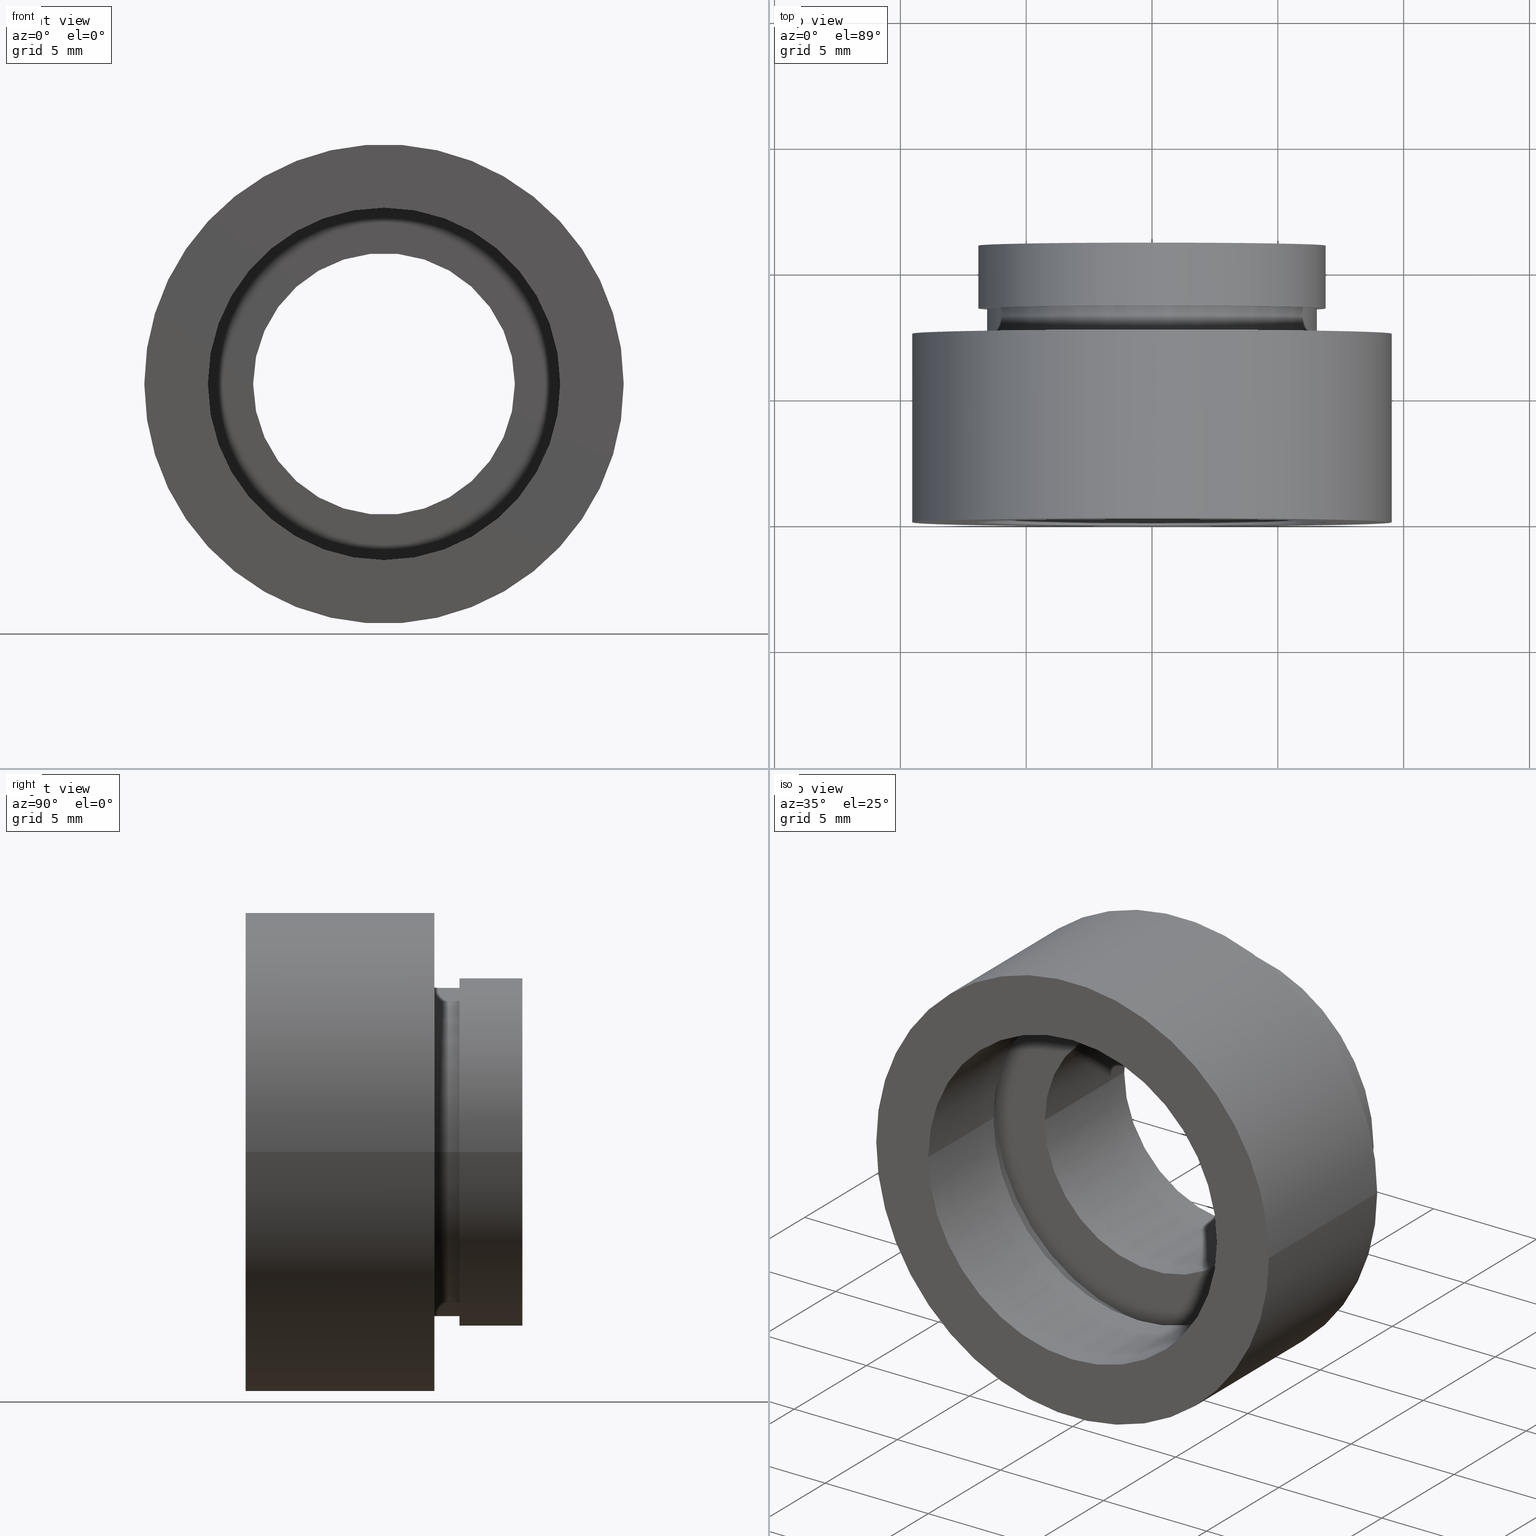
[diagram: canonical four-view strip — front | top / right | iso, engineering-drawing reading convention]
A machine part, canonical four-view strip (front | top / right | iso — engineering-drawing reading convention). The complete STEP part file that produces these views, byte-faithful:
ISO-10303-21;
HEADER;
FILE_DESCRIPTION (( 'STEP AP214' ),
    '1' );
FILE_NAME ('504133.STEP',
    '2019-10-10T02:31:04',
    ( '' ),
    ( '' ),
    'SwSTEP 2.0',
    'SolidWorks 2016',
    '' );
FILE_SCHEMA (( 'AUTOMOTIVE_DESIGN' ));
ENDSEC;

DATA;
#1 = DIRECTION ( 'NONE',  ( -1.000000000000000000, -9.106159978880877400E-017, 0.0000000000000000000 ) ) ;
#2 = EDGE_CURVE ( 'NONE', #444, #619, #563, .T. ) ;
#3 = CARTESIAN_POINT ( 'NONE',  ( 1.149455719078122700E-015, 7.499999999999998200, 0.0000000000000000000 ) ) ;
#4 = VERTEX_POINT ( 'NONE', #410 ) ;
#5 = EDGE_LOOP ( 'NONE', ( #231, #230 ) ) ;
#6 = CIRCLE ( 'NONE', #387, 5.200000000000001100 ) ;
#7 = VECTOR ( 'NONE', #339, 1000.000000000000000 ) ;
#8 = AXIS2_PLACEMENT_3D ( 'NONE', #320, #469, #323 ) ;
#9 = DIRECTION ( 'NONE',  ( -1.000000000000000000, -1.141265444721583800E-016, 0.0000000000000000000 ) ) ;
#10 = CARTESIAN_POINT ( 'NONE',  ( -7.599999999999997900, 4.499999999999996400, 0.0000000000000000000 ) ) ;
#11 = DIRECTION ( 'NONE',  ( -1.224646799147351000E-016, 1.000000000000000000, -0.0000000000000000000 ) ) ;
#12 = PRESENTATION_STYLE_ASSIGNMENT (( #125 ) ) ;
#13 = EDGE_CURVE ( 'NONE', #226, #619, #561, .T. ) ;
#14 = CARTESIAN_POINT ( 'NONE',  ( 0.0000000000000000000, 16.88601823708207700, 0.0000000000000000000 ) ) ;
#15 = ORIENTED_EDGE ( 'NONE', *, *, #514, .T. ) ;
#16 = EDGE_LOOP ( 'NONE', ( #217, #333, #609, #78 ) ) ;
#17 = DIRECTION ( 'NONE',  ( -1.224646799147351000E-016, 1.000000000000000000, -0.0000000000000000000 ) ) ;
#18 = CYLINDRICAL_SURFACE ( 'NONE', #156, 7.000000000000000000 ) ;
#19 = FACE_OUTER_BOUND ( 'NONE', #453, .T. ) ;
#20 = CARTESIAN_POINT ( 'NONE',  ( 2.067940818438636100E-015, 0.0000000000000000000, 0.0000000000000000000 ) ) ;
#21 = ORIENTED_EDGE ( 'NONE', *, *, #514, .F. ) ;
#22 = EDGE_CURVE ( 'NONE', #170, #28, #586, .T. ) ;
#23 = AXIS2_PLACEMENT_3D ( 'NONE', #459, #379, #602 ) ;
#24 = VECTOR ( 'NONE', #77, 1000.000000000000000 ) ;
#25 = PRESENTATION_STYLE_ASSIGNMENT (( #288 ) ) ;
#26 = DIRECTION ( 'NONE',  ( -1.000000000000000000, 0.0000000000000000000, 0.0000000000000000000 ) ) ;
#27 = DIRECTION ( 'NONE',  ( -1.000000000000000000, 0.0000000000000000000, 0.0000000000000000000 ) ) ;
#28 = VERTEX_POINT ( 'NONE', #460 ) ;
#29 = CARTESIAN_POINT ( 'NONE',  ( 7.208293393765501500E-016, 10.99999999999999600, 0.0000000000000000000 ) ) ;
#30 = ORIENTED_EDGE ( 'NONE', *, *, #220, .T. ) ;
#31 = AXIS2_PLACEMENT_3D ( 'NONE', #556, #270, #321 ) ;
#32 = CARTESIAN_POINT ( 'NONE',  ( 0.0000000000000000000, 16.88601823708207700, 0.0000000000000000000 ) ) ;
#33 = CIRCLE ( 'NONE', #182, 6.549999999999998900 ) ;
#34 = VECTOR ( 'NONE', #388, 1000.000000000000000 ) ;
#35 = CARTESIAN_POINT ( 'NONE',  ( 6.900000000000001200, 8.500000000000000000, 0.0000000000000000000 ) ) ;
#36 =( NAMED_UNIT ( * ) PLANE_ANGLE_UNIT ( ) SI_UNIT ( $, .RADIAN. ) );
#37 = AXIS2_PLACEMENT_3D ( 'NONE', #63, #394, #497 ) ;
#38 =( NAMED_UNIT ( * ) SI_UNIT ( $, .STERADIAN. ) SOLID_ANGLE_UNIT ( ) );
#39 = DIRECTION ( 'NONE',  ( -1.000000000000000000, -1.224646799147351000E-016, 0.0000000000000000000 ) ) ;
#40 = ORIENTED_EDGE ( 'NONE', *, *, #79, .F. ) ;
#41 = FILL_AREA_STYLE ('',( #192 ) ) ;
#42 = FACE_OUTER_BOUND ( 'NONE', #476, .T. ) ;
#43 = CARTESIAN_POINT ( 'NONE',  ( -6.549999999999998000, 8.500000000000000000, 0.0000000000000000000 ) ) ;
#44 = EDGE_CURVE ( 'NONE', #444, #325, #69, .T. ) ;
#45 =( NAMED_UNIT ( * ) SI_UNIT ( $, .STERADIAN. ) SOLID_ANGLE_UNIT ( ) );
#46 = AXIS2_PLACEMENT_3D ( 'NONE', #183, #184, #371 ) ;
#47 = SURFACE_STYLE_FILL_AREA ( #337 ) ;
#48 = ORIENTED_EDGE ( 'NONE', *, *, #582, .F. ) ;
#49 = ORIENTED_EDGE ( 'NONE', *, *, #404, .F. ) ;
#50 = CARTESIAN_POINT ( 'NONE',  ( 6.900000000000001200, 16.88601823708207700, 8.450062914116738600E-016 ) ) ;
#51 = MECHANICAL_DESIGN_GEOMETRIC_PRESENTATION_REPRESENTATION (  '', ( #204 ), #447 ) ;
#52 = PLANE ( 'NONE',  #328 ) ;
#53 = VECTOR ( 'NONE', #583, 1000.000000000000000 ) ;
#54 = ADVANCED_FACE ( 'NONE', ( #93 ), #436, .F. ) ;
#55 =( LENGTH_UNIT ( ) NAMED_UNIT ( * ) SI_UNIT ( .MILLI., .METRE. ) );
#56 = ADVANCED_FACE ( 'NONE', ( #305 ), #346, .T. ) ;
#57 = DIRECTION ( 'NONE',  ( -1.224646799147351000E-016, 1.000000000000000000, -0.0000000000000000000 ) ) ;
#58 = ORIENTED_EDGE ( 'NONE', *, *, #207, .T. ) ;
#59 = ADVANCED_FACE ( 'NONE', ( #19, #461 ), #615, .F. ) ;
#60 = EDGE_CURVE ( 'NONE', #538, #94, #525, .T. ) ;
#61 = AXIS2_PLACEMENT_3D ( 'NONE', #118, #222, #27 ) ;
#62 = DIRECTION ( 'NONE',  ( -1.000000000000000000, 0.0000000000000000000, 0.0000000000000000000 ) ) ;
#63 = CARTESIAN_POINT ( 'NONE',  ( 0.0000000000000000000, 16.88601823708207700, 0.0000000000000000000 ) ) ;
#64 = DIRECTION ( 'NONE',  ( -1.224646799147351000E-016, 1.000000000000000000, -0.0000000000000000000 ) ) ;
#65 = ORIENTED_EDGE ( 'NONE', *, *, #603, .T. ) ;
#66 = CARTESIAN_POINT ( 'NONE',  ( 5.200000000000001100, 5.500000000000000900, 6.368163355566236400E-016 ) ) ;
#67 = DIRECTION ( 'NONE',  ( -1.224646799147351000E-016, 1.000000000000000000, -0.0000000000000000000 ) ) ;
#68 = CARTESIAN_POINT ( 'NONE',  ( 7.208293393765498600E-016, 11.00000000000000000, 0.0000000000000000000 ) ) ;
#69 = CIRCLE ( 'NONE', #363, 6.549999999999999800 ) ;
#70 = ORIENTED_EDGE ( 'NONE', *, *, #440, .F. ) ;
#71 = AXIS2_PLACEMENT_3D ( 'NONE', #553, #501, #502 ) ;
#72 =( NAMED_UNIT ( * ) SI_UNIT ( $, .STERADIAN. ) SOLID_ANGLE_UNIT ( ) );
#73 = LINE ( 'NONE', #251, #34 ) ;
#74 = DIRECTION ( 'NONE',  ( -1.000000000000000000, 0.0000000000000000000, 0.0000000000000000000 ) ) ;
#75 = PRESENTATION_LAYER_ASSIGNMENT (  '', '', ( #204 ) ) ;
#76 = CARTESIAN_POINT ( 'NONE',  ( -5.200000000000000200, 16.88601823708207700, 0.0000000000000000000 ) ) ;
#77 = DIRECTION ( 'NONE',  ( -1.224646799147351000E-016, 1.000000000000000000, -0.0000000000000000000 ) ) ;
#78 = ORIENTED_EDGE ( 'NONE', *, *, #590, .F. ) ;
#79 = EDGE_CURVE ( 'NONE', #443, #265, #607, .T. ) ;
#80 = EDGE_LOOP ( 'NONE', ( #65, #219, #186, #285 ) ) ;
#81 = PRODUCT_DEFINITION ( 'δ֪', '', #595, #445 ) ;
#82 = CIRCLE ( 'NONE', #191, 6.900000000000001200 ) ;
#83 = PRESENTATION_STYLE_ASSIGNMENT (( #555 ) ) ;
#84 = DIRECTION ( 'NONE',  ( -1.224646799147351000E-016, 1.000000000000000000, -0.0000000000000000000 ) ) ;
#85 = FILL_AREA_STYLE ('',( #474 ) ) ;
#86 = DIRECTION ( 'NONE',  ( -1.224646799147351000E-016, 1.000000000000000000, 0.0000000000000000000 ) ) ;
#87 = ORIENTED_EDGE ( 'NONE', *, *, #614, .T. ) ;
#88 = CARTESIAN_POINT ( 'NONE',  ( 1.149455719078122500E-015, 7.500000000000000000, 0.0000000000000000000 ) ) ;
#89 = EDGE_CURVE ( 'NONE', #326, #135, #225, .T. ) ;
#90 = CARTESIAN_POINT ( 'NONE',  ( 5.200000000000001100, 5.500000000000000000, 0.0000000000000000000 ) ) ;
#91 = PRESENTATION_LAYER_ASSIGNMENT (  '', '', ( #221 ) ) ;
#92 = ADVANCED_FACE ( 'NONE', ( #160, #193 ), #196, .F. ) ;
#93 = FACE_OUTER_BOUND ( 'NONE', #114, .T. ) ;
#94 = VERTEX_POINT ( 'NONE', #520 ) ;
#95 = ORIENTED_EDGE ( 'NONE', *, *, #60, .F. ) ;
#96 = CIRCLE ( 'NONE', #142, 7.000000000000000000 ) ;
#97 = AXIS2_PLACEMENT_3D ( 'NONE', #3, #151, #1 ) ;
#98 = CARTESIAN_POINT ( 'NONE',  ( 6.900000000000001200, 8.500000000000000000, 8.450062914116738600E-016 ) ) ;
#99 = VECTOR ( 'NONE', #17, 1000.000000000000000 ) ;
#100 = CYLINDRICAL_SURFACE ( 'NONE', #167, 7.000000000000000000 ) ;
#101 = SURFACE_SIDE_STYLE ('',( #571 ) ) ;
#102 = ORIENTED_EDGE ( 'NONE', *, *, #355, .T. ) ;
#103 = DIRECTION ( 'NONE',  ( 1.000000000000000000, 1.224646799147351000E-016, 0.0000000000000000000 ) ) ;
#104 = ADVANCED_FACE ( 'NONE', ( #398 ), #100, .F. ) ;
#105 = LINE ( 'NONE', #213, #431 ) ;
#106 = CARTESIAN_POINT ( 'NONE',  ( -6.900000000000001200, 16.88601823708207700, 0.0000000000000000000 ) ) ;
#107 = LINE ( 'NONE', #246, #302 ) ;
#108 = MANIFOLD_SOLID_BREP ( '��ת1', #548 ) ;
#109 = SHAPE_DEFINITION_REPRESENTATION ( #252, #375 ) ;
#110 = ADVANCED_FACE ( 'NONE', ( #393 ), #407, .F. ) ;
#111 = DIRECTION ( 'NONE',  ( -1.000000000000000000, 0.0000000000000000000, 0.0000000000000000000 ) ) ;
#112 = AXIS2_PLACEMENT_3D ( 'NONE', #541, #11, #353 ) ;
#113 = DIRECTION ( 'NONE',  ( -1.224646799147351000E-016, 1.000000000000000000, -0.0000000000000000000 ) ) ;
#114 = EDGE_LOOP ( 'NONE', ( #95, #547, #601, #372 ) ) ;
#115 = CARTESIAN_POINT ( 'NONE',  ( -7.599999999999999600, 16.88601823708207700, 0.0000000000000000000 ) ) ;
#116 = EDGE_CURVE ( 'NONE', #487, #135, #491, .T. ) ;
#117 = AXIS2_PLACEMENT_3D ( 'NONE', #403, #439, #492 ) ;
#118 = CARTESIAN_POINT ( 'NONE',  ( 0.0000000000000000000, 16.88601823708207700, 0.0000000000000000000 ) ) ;
#119 = CARTESIAN_POINT ( 'NONE',  ( 0.0000000000000000000, 16.88601823708207700, 0.0000000000000000000 ) ) ;
#120 =( GEOMETRIC_REPRESENTATION_CONTEXT ( 3 ) GLOBAL_UNCERTAINTY_ASSIGNED_CONTEXT ( ( #529 ) ) GLOBAL_UNIT_ASSIGNED_CONTEXT ( ( #55, #580, #483 ) ) REPRESENTATION_CONTEXT ( 'NONE', 'WORKASPACE' ) );
#121 = ORIENTED_EDGE ( 'NONE', *, *, #440, .T. ) ;
#122 = DIRECTION ( 'NONE',  ( -1.000000000000000000, 0.0000000000000000000, 0.0000000000000000000 ) ) ;
#123 = CIRCLE ( 'NONE', #97, 9.525000000000000400 ) ;
#124 = COLOUR_RGB ( '',1.000000000000000000, 1.000000000000000000, 1.000000000000000000 ) ;
#125 = SURFACE_STYLE_USAGE ( .BOTH. , #606 ) ;
#126 = DIRECTION ( 'NONE',  ( -1.224646799147351000E-016, 1.000000000000000000, -0.0000000000000000000 ) ) ;
#127 = EDGE_LOOP ( 'NONE', ( #574, #249 ) ) ;
#128 =( GEOMETRIC_REPRESENTATION_CONTEXT ( 3 ) GLOBAL_UNCERTAINTY_ASSIGNED_CONTEXT ( ( #284 ) ) GLOBAL_UNIT_ASSIGNED_CONTEXT ( ( #435, #350, #297 ) ) REPRESENTATION_CONTEXT ( 'NONE', 'WORKASPACE' ) );
#129 = ORIENTED_EDGE ( 'NONE', *, *, #467, .T. ) ;
#130 = CARTESIAN_POINT ( 'NONE',  ( 1.026991039163387500E-015, 8.500000000000000000, 0.0000000000000000000 ) ) ;
#131 = FACE_OUTER_BOUND ( 'NONE', #554, .T. ) ;
#132 = PLANE ( 'NONE',  #528 ) ;
#133 = CARTESIAN_POINT ( 'NONE',  ( 7.000000000000001800, 4.499999999999999100, 0.0000000000000000000 ) ) ;
#134 = DIRECTION ( 'NONE',  ( -1.000000000000000000, -1.239088197126290800E-016, 0.0000000000000000000 ) ) ;
#135 = VERTEX_POINT ( 'NONE', #143 ) ;
#136 = UNCERTAINTY_MEASURE_WITH_UNIT (LENGTH_MEASURE( 1.000000000000000100E-005 ), #277, 'distance_accuracy_value', 'NONE');
#137 = CARTESIAN_POINT ( 'NONE',  ( 1.516849758822327900E-015, 4.500000000000000900, 0.0000000000000000000 ) ) ;
#138 = VERTEX_POINT ( 'NONE', #579 ) ;
#139 = CIRCLE ( 'NONE', #117, 6.549999999999999800 ) ;
#140 = DIRECTION ( 'NONE',  ( -1.224646799147351000E-016, 1.000000000000000000, -0.0000000000000000000 ) ) ;
#141 = DIRECTION ( 'NONE',  ( -1.000000000000000000, -1.668003342285391300E-016, 0.0000000000000000000 ) ) ;
#142 = AXIS2_PLACEMENT_3D ( 'NONE', #598, #228, #134 ) ;
#143 = CARTESIAN_POINT ( 'NONE',  ( 7.000000000000001800, 4.500000000000001800, 8.572527594031473200E-016 ) ) ;
#144 = EDGE_LOOP ( 'NONE', ( #416, #169 ) ) ;
#145 = ORIENTED_EDGE ( 'NONE', *, *, #590, .T. ) ;
#146 = ORIENTED_EDGE ( 'NONE', *, *, #614, .F. ) ;
#147 = CARTESIAN_POINT ( 'NONE',  ( 1.394385078907593200E-015, 5.499999999999996400, 0.0000000000000000000 ) ) ;
#148 = CYLINDRICAL_SURFACE ( 'NONE', #37, 5.200000000000000200 ) ;
#149 = DIRECTION ( 'NONE',  ( 1.224646799147351000E-016, -1.000000000000000000, 0.0000000000000000000 ) ) ;
#150 = EDGE_CURVE ( 'NONE', #170, #592, #351, .T. ) ;
#151 = DIRECTION ( 'NONE',  ( -1.224646799147351000E-016, 1.000000000000000000, -0.0000000000000000000 ) ) ;
#152 = AXIS2_PLACEMENT_3D ( 'NONE', #130, #84, #26 ) ;
#153 = DIRECTION ( 'NONE',  ( -1.224646799147351000E-016, 1.000000000000000000, -0.0000000000000000000 ) ) ;
#154 = ORIENTED_EDGE ( 'NONE', *, *, #164, .T. ) ;
#155 = ORIENTED_EDGE ( 'NONE', *, *, #344, .T. ) ;
#156 = AXIS2_PLACEMENT_3D ( 'NONE', #200, #433, #624 ) ;
#157 = FACE_OUTER_BOUND ( 'NONE', #618, .T. ) ;
#158 = FACE_OUTER_BOUND ( 'NONE', #80, .T. ) ;
#159 =( GEOMETRIC_REPRESENTATION_CONTEXT ( 3 ) GLOBAL_UNCERTAINTY_ASSIGNED_CONTEXT ( ( #612 ) ) GLOBAL_UNIT_ASSIGNED_CONTEXT ( ( #242, #36, #382 ) ) REPRESENTATION_CONTEXT ( 'NONE', 'WORKASPACE' ) );
#160 = FACE_OUTER_BOUND ( 'NONE', #203, .T. ) ;
#161 = ORIENTED_EDGE ( 'NONE', *, *, #420, .T. ) ;
#162 = DIRECTION ( 'NONE',  ( -1.224646799147351000E-016, 1.000000000000000000, -0.0000000000000000000 ) ) ;
#163 = CIRCLE ( 'NONE', #152, 6.900000000000000400 ) ;
#164 = EDGE_CURVE ( 'NONE', #308, #478, #123, .T. ) ;
#165 = AXIS2_PLACEMENT_3D ( 'NONE', #20, #369, #168 ) ;
#166 = CARTESIAN_POINT ( 'NONE',  ( -9.524999999999998600, 7.499999999999997300, 0.0000000000000000000 ) ) ;
#167 = AXIS2_PLACEMENT_3D ( 'NONE', #32, #278, #470 ) ;
#168 = DIRECTION ( 'NONE',  ( -1.000000000000000000, -1.224646799147351000E-016, 0.0000000000000000000 ) ) ;
#169 = ORIENTED_EDGE ( 'NONE', *, *, #573, .T. ) ;
#170 = VERTEX_POINT ( 'NONE', #98 ) ;
#171 = CARTESIAN_POINT ( 'NONE',  ( 0.0000000000000000000, 16.88601823708207700, 0.0000000000000000000 ) ) ;
#172 = EDGE_CURVE ( 'NONE', #138, #478, #107, .T. ) ;
#173 = CIRCLE ( 'NONE', #352, 6.900000000000001200 ) ;
#174 = STYLED_ITEM ( 'NONE', ( #12 ), #375 ) ;
#175 = CARTESIAN_POINT ( 'NONE',  ( 0.0000000000000000000, 16.88601823708207700, 0.0000000000000000000 ) ) ;
#176 = ORIENTED_EDGE ( 'NONE', *, *, #287, .F. ) ;
#177 = DIRECTION ( 'NONE',  ( -1.224646799147351000E-016, 1.000000000000000000, -0.0000000000000000000 ) ) ;
#178 = CIRCLE ( 'NONE', #8, 9.525000000000000400 ) ;
#179 =( LENGTH_UNIT ( ) NAMED_UNIT ( * ) SI_UNIT ( .MILLI., .METRE. ) );
#180 = FACE_OUTER_BOUND ( 'NONE', #545, .T. ) ;
#181 = LINE ( 'NONE', #386, #542 ) ;
#182 = AXIS2_PLACEMENT_3D ( 'NONE', #585, #64, #354 ) ;
#183 = CARTESIAN_POINT ( 'NONE',  ( 1.516849758822328300E-015, 4.499999999999997300, 0.0000000000000000000 ) ) ;
#184 = DIRECTION ( 'NONE',  ( -1.224646799147351000E-016, 1.000000000000000000, -0.0000000000000000000 ) ) ;
#185 = EDGE_LOOP ( 'NONE', ( #512, #202, #87, #533 ) ) ;
#186 = ORIENTED_EDGE ( 'NONE', *, *, #268, .F. ) ;
#187 = APPLICATION_CONTEXT ( 'automotive_design' ) ;
#188 = DIRECTION ( 'NONE',  ( 1.224646799147351000E-016, -1.000000000000000000, 0.0000000000000000000 ) ) ;
#189 = FACE_OUTER_BOUND ( 'NONE', #421, .T. ) ;
#190 = DIRECTION ( 'NONE',  ( -1.224646799147351000E-016, 1.000000000000000000, -0.0000000000000000000 ) ) ;
#191 = AXIS2_PLACEMENT_3D ( 'NONE', #29, #519, #513 ) ;
#192 = FILL_AREA_STYLE_COLOUR ( '', #543 ) ;
#193 = FACE_BOUND ( 'NONE', #210, .T. ) ;
#194 = DIRECTION ( 'NONE',  ( -1.000000000000000000, -1.239088197126290800E-016, 0.0000000000000000000 ) ) ;
#195 = ORIENTED_EDGE ( 'NONE', *, *, #307, .F. ) ;
#196 = PLANE ( 'NONE',  #291 ) ;
#197 = PRODUCT_CONTEXT ( 'NONE', #187, 'mechanical' ) ;
#198 = CARTESIAN_POINT ( 'NONE',  ( -5.199999999999998400, 5.499999999999999100, 0.0000000000000000000 ) ) ;
#199 =( GEOMETRIC_REPRESENTATION_CONTEXT ( 3 ) GLOBAL_UNCERTAINTY_ASSIGNED_CONTEXT ( ( #274 ) ) GLOBAL_UNIT_ASSIGNED_CONTEXT ( ( #179, #413, #38 ) ) REPRESENTATION_CONTEXT ( 'NONE', 'WORKASPACE' ) );
#200 = CARTESIAN_POINT ( 'NONE',  ( 0.0000000000000000000, 16.88601823708207700, 0.0000000000000000000 ) ) ;
#201 = VECTOR ( 'NONE', #126, 1000.000000000000000 ) ;
#202 = ORIENTED_EDGE ( 'NONE', *, *, #220, .F. ) ;
#203 = EDGE_LOOP ( 'NONE', ( #587, #195 ) ) ;
#204 = STYLED_ITEM ( 'NONE', ( #289 ), #108 ) ;
#205 = FILL_AREA_STYLE ('',( #290 ) ) ;
#206 = LINE ( 'NONE', #227, #99 ) ;
#207 = EDGE_CURVE ( 'NONE', #443, #534, #73, .T. ) ;
#208 = SURFACE_STYLE_USAGE ( .BOTH. , #532 ) ;
#209 = ADVANCED_FACE ( 'NONE', ( #42 ), #18, .F. ) ;
#210 = EDGE_LOOP ( 'NONE', ( #30, #370 ) ) ;
#211 = EDGE_LOOP ( 'NONE', ( #40, #58, #161, #146 ) ) ;
#212 = AXIS2_PLACEMENT_3D ( 'NONE', #14, #504, #264 ) ;
#213 = CARTESIAN_POINT ( 'NONE',  ( -7.000000000000000000, 16.88601823708207700, 0.0000000000000000000 ) ) ;
#214 = DIRECTION ( 'NONE',  ( -1.000000000000000000, -1.141265444721583800E-016, 0.0000000000000000000 ) ) ;
#215 = CARTESIAN_POINT ( 'NONE',  ( -6.999999999999998200, 4.500000000000000000, 0.0000000000000000000 ) ) ;
#216 = EDGE_LOOP ( 'NONE', ( #121, #340, #356, #503 ) ) ;
#217 = ORIENTED_EDGE ( 'NONE', *, *, #172, .F. ) ;
#218 = CARTESIAN_POINT ( 'NONE',  ( 1.516849758822328300E-015, 4.499999999999997300, 0.0000000000000000000 ) ) ;
#219 = ORIENTED_EDGE ( 'NONE', *, *, #150, .T. ) ;
#220 = EDGE_CURVE ( 'NONE', #265, #443, #319, .T. ) ;
#221 = STYLED_ITEM ( 'NONE', ( #83 ), #437 ) ;
#222 = DIRECTION ( 'NONE',  ( -1.224646799147351000E-016, 1.000000000000000000, -0.0000000000000000000 ) ) ;
#223 = FILL_AREA_STYLE_COLOUR ( '', #576 ) ;
#224 =( NAMED_UNIT ( * ) SI_UNIT ( $, .STERADIAN. ) SOLID_ANGLE_UNIT ( ) );
#225 = CIRCLE ( 'NONE', #524, 7.000000000000000000 ) ;
#226 = VERTEX_POINT ( 'NONE', #43 ) ;
#227 = CARTESIAN_POINT ( 'NONE',  ( -6.549999999999998900, 16.88601823708207700, 0.0000000000000000000 ) ) ;
#228 = DIRECTION ( 'NONE',  ( -1.224646799147351000E-016, 1.000000000000000000, -0.0000000000000000000 ) ) ;
#229 = EDGE_CURVE ( 'NONE', #496, #308, #181, .T. ) ;
#230 = ORIENTED_EDGE ( 'NONE', *, *, #295, .T. ) ;
#231 = ORIENTED_EDGE ( 'NONE', *, *, #13, .T. ) ;
#232 = DIRECTION ( 'NONE',  ( 1.000000000000000000, 1.224646799147351000E-016, 0.0000000000000000000 ) ) ;
#233 = FACE_OUTER_BOUND ( 'NONE', #238, .T. ) ;
#234 = PRESENTATION_LAYER_ASSIGNMENT (  '', '', ( #338 ) ) ;
#235 = CARTESIAN_POINT ( 'NONE',  ( 6.900000000000002100, 10.99999999999999600, 8.450062914116738600E-016 ) ) ;
#236 = DIRECTION ( 'NONE',  ( -1.224646799147351000E-016, 1.000000000000000000, -0.0000000000000000000 ) ) ;
#237 = EDGE_CURVE ( 'NONE', #620, #94, #611, .T. ) ;
#238 = EDGE_LOOP ( 'NONE', ( #451, #438, #373, #564 ) ) ;
#239 =( NAMED_UNIT ( * ) SI_UNIT ( $, .STERADIAN. ) SOLID_ANGLE_UNIT ( ) );
#240 = VECTOR ( 'NONE', #537, 1000.000000000000000 ) ;
#241 = DIRECTION ( 'NONE',  ( 1.000000000000000000, 0.0000000000000000000, 0.0000000000000000000 ) ) ;
#242 =( LENGTH_UNIT ( ) NAMED_UNIT ( * ) SI_UNIT ( .MILLI., .METRE. ) );
#243 = MECHANICAL_DESIGN_GEOMETRIC_PRESENTATION_REPRESENTATION (  '', ( #174 ), #199 ) ;
#244 = DIRECTION ( 'NONE',  ( -1.000000000000000000, -1.224646799147351000E-016, 0.0000000000000000000 ) ) ;
#245 = EDGE_LOOP ( 'NONE', ( #298, #415, #292, #384 ) ) ;
#246 = CARTESIAN_POINT ( 'NONE',  ( 9.525000000000002100, 16.88601823708207700, 1.166476076187854200E-015 ) ) ;
#247 = CARTESIAN_POINT ( 'NONE',  ( 1.394385078907592800E-015, 5.500000000000000000, 0.0000000000000000000 ) ) ;
#248 = ORIENTED_EDGE ( 'NONE', *, *, #450, .F. ) ;
#249 = ORIENTED_EDGE ( 'NONE', *, *, #420, .F. ) ;
#250 = AXIS2_PLACEMENT_3D ( 'NONE', #402, #488, #214 ) ;
#251 = CARTESIAN_POINT ( 'NONE',  ( 5.200000000000000200, 16.88601823708207700, 6.368163355566236400E-016 ) ) ;
#252 = PRODUCT_DEFINITION_SHAPE ( 'NONE', 'NONE',  #81 ) ;
#253 = SURFACE_STYLE_USAGE ( .BOTH. , #442 ) ;
#254 = FACE_OUTER_BOUND ( 'NONE', #144, .T. ) ;
#255 = ADVANCED_FACE ( 'NONE', ( #568, #254 ), #52, .F. ) ;
#256 = MECHANICAL_DESIGN_GEOMETRIC_PRESENTATION_REPRESENTATION (  '', ( #511 ), #159 ) ;
#257 = FILL_AREA_STYLE ('',( #500 ) ) ;
#258 = ADVANCED_FACE ( 'NONE', ( #411, #189 ), #572, .F. ) ;
#259 = ORIENTED_EDGE ( 'NONE', *, *, #116, .T. ) ;
#260 = EDGE_CURVE ( 'NONE', #389, #620, #577, .T. ) ;
#261 = AXIS2_PLACEMENT_3D ( 'NONE', #327, #477, #241 ) ;
#262 = COLOUR_RGB ( '',1.000000000000000000, 1.000000000000000000, 1.000000000000000000 ) ;
#263 = SURFACE_STYLE_FILL_AREA ( #257 ) ;
#264 = DIRECTION ( 'NONE',  ( -1.000000000000000000, 0.0000000000000000000, 0.0000000000000000000 ) ) ;
#265 = VERTEX_POINT ( 'NONE', #198 ) ;
#266 = DIRECTION ( 'NONE',  ( -1.224646799147351000E-016, 1.000000000000000000, -0.0000000000000000000 ) ) ;
#267 = ORIENTED_EDGE ( 'NONE', *, *, #2, .T. ) ;
#268 = EDGE_CURVE ( 'NONE', #4, #592, #173, .T. ) ;
#269 = SURFACE_STYLE_FILL_AREA ( #85 ) ;
#270 = DIRECTION ( 'NONE',  ( -1.224646799147351000E-016, 1.000000000000000000, -0.0000000000000000000 ) ) ;
#271 = EDGE_LOOP ( 'NONE', ( #341, #48 ) ) ;
#272 = CARTESIAN_POINT ( 'NONE',  ( 7.600000000000001400, 4.499999999999998200, 9.307315673519885500E-016 ) ) ;
#273 = STYLED_ITEM ( 'NONE', ( #473 ), #300 ) ;
#274 = UNCERTAINTY_MEASURE_WITH_UNIT (LENGTH_MEASURE( 1.000000000000000100E-005 ), #179, 'distance_accuracy_value', 'NONE');
#275 = CARTESIAN_POINT ( 'NONE',  ( -7.599999999999997900, 5.499999999999995600, 0.0000000000000000000 ) ) ;
#276 = EDGE_CURVE ( 'NONE', #498, #326, #105, .T. ) ;
#277 =( LENGTH_UNIT ( ) NAMED_UNIT ( * ) SI_UNIT ( .MILLI., .METRE. ) );
#278 = DIRECTION ( 'NONE',  ( -1.224646799147351000E-016, 1.000000000000000000, -0.0000000000000000000 ) ) ;
#279 = EDGE_LOOP ( 'NONE', ( #155, #15 ) ) ;
#280 = CYLINDRICAL_SURFACE ( 'NONE', #441, 9.525000000000002100 ) ;
#281 = DIRECTION ( 'NONE',  ( -1.224646799147351000E-016, 1.000000000000000000, -0.0000000000000000000 ) ) ;
#282 = SURFACE_STYLE_USAGE ( .BOTH. , #523 ) ;
#283 = AXIS2_PLACEMENT_3D ( 'NONE', #147, #621, #392 ) ;
#284 = UNCERTAINTY_MEASURE_WITH_UNIT (LENGTH_MEASURE( 1.000000000000000100E-005 ), #435, 'distance_accuracy_value', 'NONE');
#285 = ORIENTED_EDGE ( 'NONE', *, *, #378, .F. ) ;
#286 = CARTESIAN_POINT ( 'NONE',  ( 1.394385078907592800E-015, 5.500000000000000000, 0.0000000000000000000 ) ) ;
#287 = EDGE_CURVE ( 'NONE', #487, #498, #400, .T. ) ;
#288 = SURFACE_STYLE_USAGE ( .BOTH. , #101 ) ;
#289 = PRESENTATION_STYLE_ASSIGNMENT (( #468 ) ) ;
#290 = FILL_AREA_STYLE_COLOUR ( '', #432 ) ;
#291 = AXIS2_PLACEMENT_3D ( 'NONE', #90, #86, #39 ) ;
#292 = ORIENTED_EDGE ( 'NONE', *, *, #276, .T. ) ;
#293 = EDGE_LOOP ( 'NONE', ( #102, #267, #429, #49 ) ) ;
#294 = LINE ( 'NONE', #106, #240 ) ;
#295 = EDGE_CURVE ( 'NONE', #619, #226, #33, .T. ) ;
#296 = DIRECTION ( 'NONE',  ( -1.000000000000000000, -1.668003342285391300E-016, 0.0000000000000000000 ) ) ;
#297 =( NAMED_UNIT ( * ) SI_UNIT ( $, .STERADIAN. ) SOLID_ANGLE_UNIT ( ) );
#298 = ORIENTED_EDGE ( 'NONE', *, *, #116, .F. ) ;
#299 = MECHANICAL_DESIGN_GEOMETRIC_PRESENTATION_REPRESENTATION (  '', ( #221 ), #322 ) ;
#300 = ADVANCED_FACE ( 'NONE', ( #584 ), #148, .F. ) ;
#301 = CIRCLE ( 'NONE', #71, 9.525000000000003900 ) ;
#302 = VECTOR ( 'NONE', #430, 1000.000000000000000 ) ;
#303 = DIRECTION ( 'NONE',  ( -1.224646799147351000E-016, 1.000000000000000000, -0.0000000000000000000 ) ) ;
#304 = CARTESIAN_POINT ( 'NONE',  ( -6.549999999999998900, 7.499999999999999100, 0.0000000000000000000 ) ) ;
#305 = FACE_OUTER_BOUND ( 'NONE', #216, .T. ) ;
#306 = ORIENTED_EDGE ( 'NONE', *, *, #582, .T. ) ;
#307 = EDGE_CURVE ( 'NONE', #94, #620, #406, .T. ) ;
#308 = VERTEX_POINT ( 'NONE', #166 ) ;
#309 = ORIENTED_EDGE ( 'NONE', *, *, #2, .F. ) ;
#310 = FILL_AREA_STYLE ('',( #591 ) ) ;
#311 = DIRECTION ( 'NONE',  ( -1.000000000000000000, 0.0000000000000000000, 0.0000000000000000000 ) ) ;
#312 = UNCERTAINTY_MEASURE_WITH_UNIT (LENGTH_MEASURE( 1.000000000000000100E-005 ), #508, 'distance_accuracy_value', 'NONE');
#313 = DIRECTION ( 'NONE',  ( -1.224646799147351000E-016, 1.000000000000000000, -0.0000000000000000000 ) ) ;
#314 = VECTOR ( 'NONE', #236, 1000.000000000000000 ) ;
#315 =( LENGTH_UNIT ( ) NAMED_UNIT ( * ) SI_UNIT ( .MILLI., .METRE. ) );
#316 = AXIS2_PLACEMENT_3D ( 'NONE', #428, #149, #479 ) ;
#317 = DIRECTION ( 'NONE',  ( -1.224646799147351000E-016, 1.000000000000000000, -0.0000000000000000000 ) ) ;
#318 = CYLINDRICAL_SURFACE ( 'NONE', #412, 7.599999999999999600 ) ;
#319 = CIRCLE ( 'NONE', #597, 5.200000000000000200 ) ;
#320 = CARTESIAN_POINT ( 'NONE',  ( 1.149455719078122700E-015, 7.499999999999998200, 0.0000000000000000000 ) ) ;
#321 = DIRECTION ( 'NONE',  ( -1.000000000000000000, 0.0000000000000000000, 0.0000000000000000000 ) ) ;
#322 =( GEOMETRIC_REPRESENTATION_CONTEXT ( 3 ) GLOBAL_UNCERTAINTY_ASSIGNED_CONTEXT ( ( #312 ) ) GLOBAL_UNIT_ASSIGNED_CONTEXT ( ( #508, #596, #224 ) ) REPRESENTATION_CONTEXT ( 'NONE', 'WORKASPACE' ) );
#323 = DIRECTION ( 'NONE',  ( -1.000000000000000000, -9.106159978880877400E-017, 0.0000000000000000000 ) ) ;
#324 = COLOUR_RGB ( '',1.000000000000000000, 1.000000000000000000, 1.000000000000000000 ) ;
#325 = VERTEX_POINT ( 'NONE', #304 ) ;
#326 = VERTEX_POINT ( 'NONE', #215 ) ;
#327 = CARTESIAN_POINT ( 'NONE',  ( 0.0000000000000000000, 0.0000000000000000000, 0.0000000000000000000 ) ) ;
#328 = AXIS2_PLACEMENT_3D ( 'NONE', #485, #345, #103 ) ;
#329 =( NAMED_UNIT ( * ) PLANE_ANGLE_UNIT ( ) SI_UNIT ( $, .RADIAN. ) );
#330 = DIRECTION ( 'NONE',  ( -1.224646799147351000E-016, 1.000000000000000000, -0.0000000000000000000 ) ) ;
#331 = FILL_AREA_STYLE_COLOUR ( '', #262 ) ;
#332 = FILL_AREA_STYLE_COLOUR ( '', #324 ) ;
#333 = ORIENTED_EDGE ( 'NONE', *, *, #450, .T. ) ;
#334 = ORIENTED_EDGE ( 'NONE', *, *, #22, .F. ) ;
#335 =( NAMED_UNIT ( * ) PLANE_ANGLE_UNIT ( ) SI_UNIT ( $, .RADIAN. ) );
#336 =( GEOMETRIC_REPRESENTATION_CONTEXT ( 3 ) GLOBAL_UNCERTAINTY_ASSIGNED_CONTEXT ( ( #361 ) ) GLOBAL_UNIT_ASSIGNED_CONTEXT ( ( #315, #362, #72 ) ) REPRESENTATION_CONTEXT ( 'NONE', 'WORKASPACE' ) );
#337 = FILL_AREA_STYLE ('',( #332 ) ) ;
#338 = STYLED_ITEM ( 'NONE', ( #425 ), #209 ) ;
#339 = DIRECTION ( 'NONE',  ( -1.224646799147351000E-016, 1.000000000000000000, -0.0000000000000000000 ) ) ;
#340 = ORIENTED_EDGE ( 'NONE', *, *, #172, .T. ) ;
#341 = ORIENTED_EDGE ( 'NONE', *, *, #89, .F. ) ;
#342 = DIRECTION ( 'NONE',  ( -1.224646799147351000E-016, 1.000000000000000000, -0.0000000000000000000 ) ) ;
#343 = CYLINDRICAL_SURFACE ( 'NONE', #61, 6.549999999999998900 ) ;
#344 = EDGE_CURVE ( 'NONE', #389, #538, #417, .T. ) ;
#345 = DIRECTION ( 'NONE',  ( 1.224646799147351000E-016, -1.000000000000000000, 0.0000000000000000000 ) ) ;
#346 = CYLINDRICAL_SURFACE ( 'NONE', #456, 9.525000000000002100 ) ;
#347 = ADVANCED_FACE ( 'NONE', ( #610 ), #280, .T. ) ;
#348 = ORIENTED_EDGE ( 'NONE', *, *, #60, .T. ) ;
#349 = LINE ( 'NONE', #76, #24 ) ;
#350 =( NAMED_UNIT ( * ) PLANE_ANGLE_UNIT ( ) SI_UNIT ( $, .RADIAN. ) );
#351 = LINE ( 'NONE', #50, #7 ) ;
#352 = AXIS2_PLACEMENT_3D ( 'NONE', #397, #113, #111 ) ;
#353 = DIRECTION ( 'NONE',  ( -1.000000000000000000, -1.224646799147351000E-016, 0.0000000000000000000 ) ) ;
#354 = DIRECTION ( 'NONE',  ( -1.000000000000000000, 0.0000000000000000000, 0.0000000000000000000 ) ) ;
#355 = EDGE_CURVE ( 'NONE', #325, #444, #139, .T. ) ;
#356 = ORIENTED_EDGE ( 'NONE', *, *, #164, .F. ) ;
#357 = ORIENTED_EDGE ( 'NONE', *, *, #260, .F. ) ;
#358 = CIRCLE ( 'NONE', #46, 7.599999999999999600 ) ;
#359 = COLOUR_RGB ( '',1.000000000000000000, 1.000000000000000000, 1.000000000000000000 ) ;
#360 = DIRECTION ( 'NONE',  ( -1.000000000000000000, 0.0000000000000000000, 0.0000000000000000000 ) ) ;
#361 = UNCERTAINTY_MEASURE_WITH_UNIT (LENGTH_MEASURE( 1.000000000000000100E-005 ), #315, 'distance_accuracy_value', 'NONE');
#362 =( NAMED_UNIT ( * ) PLANE_ANGLE_UNIT ( ) SI_UNIT ( $, .RADIAN. ) );
#363 = AXIS2_PLACEMENT_3D ( 'NONE', #88, #140, #570 ) ;
#364 = SURFACE_STYLE_USAGE ( .BOTH. , #549 ) ;
#365 = FACE_OUTER_BOUND ( 'NONE', #293, .T. ) ;
#366 = CARTESIAN_POINT ( 'NONE',  ( 7.208293393765498600E-016, 11.00000000000000000, 0.0000000000000000000 ) ) ;
#367 = CARTESIAN_POINT ( 'NONE',  ( 1.026991039163387500E-015, 8.500000000000000000, 0.0000000000000000000 ) ) ;
#368 = MECHANICAL_DESIGN_GEOMETRIC_PRESENTATION_REPRESENTATION (  '', ( #396 ), #336 ) ;
#369 = DIRECTION ( 'NONE',  ( -1.224646799147351000E-016, 1.000000000000000000, -0.0000000000000000000 ) ) ;
#370 = ORIENTED_EDGE ( 'NONE', *, *, #79, .T. ) ;
#371 = DIRECTION ( 'NONE',  ( -1.000000000000000000, -1.141265444721583800E-016, 0.0000000000000000000 ) ) ;
#372 = ORIENTED_EDGE ( 'NONE', *, *, #237, .T. ) ;
#373 = ORIENTED_EDGE ( 'NONE', *, *, #378, .T. ) ;
#374 = PRESENTATION_LAYER_ASSIGNMENT (  '', '', ( #273 ) ) ;
#375 = ADVANCED_BREP_SHAPE_REPRESENTATION ( '504133', ( #108, #261 ), #457 ) ;
#376 = CARTESIAN_POINT ( 'NONE',  ( -5.200000000000000200, 11.00000000000000000, 0.0000000000000000000 ) ) ;
#377 = PRODUCT ( '504133', '504133', '', ( #197 ) ) ;
#378 = EDGE_CURVE ( 'NONE', #28, #4, #294, .T. ) ;
#379 = DIRECTION ( 'NONE',  ( -1.224646799147351000E-016, 1.000000000000000000, 0.0000000000000000000 ) ) ;
#380 = ORIENTED_EDGE ( 'NONE', *, *, #307, .T. ) ;
#381 = FILL_AREA_STYLE ('',( #331 ) ) ;
#382 =( NAMED_UNIT ( * ) SI_UNIT ( $, .STERADIAN. ) SOLID_ANGLE_UNIT ( ) );
#383 = STYLED_ITEM ( 'NONE', ( #25 ), #110 ) ;
#384 = ORIENTED_EDGE ( 'NONE', *, *, #89, .T. ) ;
#385 = EDGE_CURVE ( 'NONE', #594, #534, #623, .T. ) ;
#386 = CARTESIAN_POINT ( 'NONE',  ( -9.525000000000002100, 16.88601823708207700, 0.0000000000000000000 ) ) ;
#387 = AXIS2_PLACEMENT_3D ( 'NONE', #68, #266, #74 ) ;
#388 = DIRECTION ( 'NONE',  ( -1.224646799147351000E-016, 1.000000000000000000, -0.0000000000000000000 ) ) ;
#389 = VERTEX_POINT ( 'NONE', #10 ) ;
#390 = DIRECTION ( 'NONE',  ( -1.224646799147351000E-016, 1.000000000000000000, -0.0000000000000000000 ) ) ;
#391 = ADVANCED_FACE ( 'NONE', ( #365 ), #506, .T. ) ;
#392 = DIRECTION ( 'NONE',  ( -1.000000000000000000, -1.141265444721583800E-016, 0.0000000000000000000 ) ) ;
#393 = FACE_OUTER_BOUND ( 'NONE', #211, .T. ) ;
#394 = DIRECTION ( 'NONE',  ( -1.224646799147351000E-016, 1.000000000000000000, -0.0000000000000000000 ) ) ;
#395 = UNCERTAINTY_MEASURE_WITH_UNIT (LENGTH_MEASURE( 1.000000000000000100E-005 ), #530, 'distance_accuracy_value', 'NONE');
#396 = STYLED_ITEM ( 'NONE', ( #490 ), #434 ) ;
#397 = CARTESIAN_POINT ( 'NONE',  ( 7.208293393765501500E-016, 10.99999999999999600, 0.0000000000000000000 ) ) ;
#398 = FACE_OUTER_BOUND ( 'NONE', #245, .T. ) ;
#399 = ORIENTED_EDGE ( 'NONE', *, *, #295, .F. ) ;
#400 = CIRCLE ( 'NONE', #112, 7.000000000000000000 ) ;
#401 = MECHANICAL_DESIGN_GEOMETRIC_PRESENTATION_REPRESENTATION (  '', ( #338 ), #120 ) ;
#402 = CARTESIAN_POINT ( 'NONE',  ( 1.394385078907593200E-015, 5.499999999999996400, 0.0000000000000000000 ) ) ;
#403 = CARTESIAN_POINT ( 'NONE',  ( 1.149455719078122500E-015, 7.500000000000000000, 0.0000000000000000000 ) ) ;
#404 = EDGE_CURVE ( 'NONE', #325, #226, #206, .T. ) ;
#405 = ORIENTED_EDGE ( 'NONE', *, *, #276, .F. ) ;
#406 = CIRCLE ( 'NONE', #250, 7.599999999999999600 ) ;
#407 = CYLINDRICAL_SURFACE ( 'NONE', #462, 5.200000000000000200 ) ;
#408 = PRESENTATION_LAYER_ASSIGNMENT (  '', '', ( #396 ) ) ;
#409 = FILL_AREA_STYLE ('',( #223 ) ) ;
#410 = CARTESIAN_POINT ( 'NONE',  ( -6.900000000000000400, 10.99999999999999600, 0.0000000000000000000 ) ) ;
#411 = FACE_BOUND ( 'NONE', #600, .T. ) ;
#412 = AXIS2_PLACEMENT_3D ( 'NONE', #119, #313, #509 ) ;
#413 =( NAMED_UNIT ( * ) PLANE_ANGLE_UNIT ( ) SI_UNIT ( $, .RADIAN. ) );
#414 =( NAMED_UNIT ( * ) SI_UNIT ( $, .STERADIAN. ) SOLID_ANGLE_UNIT ( ) );
#415 = ORIENTED_EDGE ( 'NONE', *, *, #467, .F. ) ;
#416 = ORIENTED_EDGE ( 'NONE', *, *, #268, .T. ) ;
#417 = CIRCLE ( 'NONE', #480, 7.599999999999999600 ) ;
#418 = DIRECTION ( 'NONE',  ( -1.000000000000000000, 0.0000000000000000000, 0.0000000000000000000 ) ) ;
#419 = UNCERTAINTY_MEASURE_WITH_UNIT (LENGTH_MEASURE( 1.000000000000000100E-005 ), #423, 'distance_accuracy_value', 'NONE');
#420 = EDGE_CURVE ( 'NONE', #534, #594, #6, .T. ) ;
#421 = EDGE_LOOP ( 'NONE', ( #154, #145 ) ) ;
#422 = AXIS2_PLACEMENT_3D ( 'NONE', #367, #177, #510 ) ;
#423 =( LENGTH_UNIT ( ) NAMED_UNIT ( * ) SI_UNIT ( .MILLI., .METRE. ) );
#424 = AXIS2_PLACEMENT_3D ( 'NONE', #175, #551, #360 ) ;
#425 = PRESENTATION_STYLE_ASSIGNMENT (( #208 ) ) ;
#426 = DIRECTION ( 'NONE',  ( -1.224646799147351000E-016, 1.000000000000000000, 0.0000000000000000000 ) ) ;
#427 = MECHANICAL_DESIGN_GEOMETRIC_PRESENTATION_REPRESENTATION (  '', ( #273 ), #128 ) ;
#428 = CARTESIAN_POINT ( 'NONE',  ( 6.550000000000000700, 7.500000000000000000, 0.0000000000000000000 ) ) ;
#429 = ORIENTED_EDGE ( 'NONE', *, *, #13, .F. ) ;
#430 = DIRECTION ( 'NONE',  ( -1.224646799147351000E-016, 1.000000000000000000, -0.0000000000000000000 ) ) ;
#431 = VECTOR ( 'NONE', #57, 1000.000000000000000 ) ;
#432 = COLOUR_RGB ( '',1.000000000000000000, 1.000000000000000000, 1.000000000000000000 ) ;
#433 = DIRECTION ( 'NONE',  ( -1.224646799147351000E-016, 1.000000000000000000, -0.0000000000000000000 ) ) ;
#434 = ADVANCED_FACE ( 'NONE', ( #158 ), #481, .T. ) ;
#435 =( LENGTH_UNIT ( ) NAMED_UNIT ( * ) SI_UNIT ( .MILLI., .METRE. ) );
#436 = CYLINDRICAL_SURFACE ( 'NONE', #552, 7.599999999999999600 ) ;
#437 = ADVANCED_FACE ( 'NONE', ( #233 ), #622, .T. ) ;
#438 = ORIENTED_EDGE ( 'NONE', *, *, #22, .T. ) ;
#439 = DIRECTION ( 'NONE',  ( -1.224646799147351000E-016, 1.000000000000000000, -0.0000000000000000000 ) ) ;
#440 = EDGE_CURVE ( 'NONE', #496, #138, #535, .T. ) ;
#441 = AXIS2_PLACEMENT_3D ( 'NONE', #544, #162, #62 ) ;
#442 = SURFACE_SIDE_STYLE ('',( #263 ) ) ;
#443 = VERTEX_POINT ( 'NONE', #66 ) ;
#444 = VERTEX_POINT ( 'NONE', #452 ) ;
#445 = PRODUCT_DEFINITION_CONTEXT ( 'detailed design', #565, 'design' ) ;
#446 = DIRECTION ( 'NONE',  ( -1.000000000000000000, -1.224646799147351200E-016, 0.0000000000000000000 ) ) ;
#447 =( GEOMETRIC_REPRESENTATION_CONTEXT ( 3 ) GLOBAL_UNCERTAINTY_ASSIGNED_CONTEXT ( ( #419 ) ) GLOBAL_UNIT_ASSIGNED_CONTEXT ( ( #423, #335, #239 ) ) REPRESENTATION_CONTEXT ( 'NONE', 'WORKASPACE' ) );
#448 = CARTESIAN_POINT ( 'NONE',  ( 7.000000000000001800, 8.572527594031457400E-016, 8.572527594031473200E-016 ) ) ;
#449 = CARTESIAN_POINT ( 'NONE',  ( 2.067940818438636100E-015, 0.0000000000000000000, 0.0000000000000000000 ) ) ;
#450 = EDGE_CURVE ( 'NONE', #138, #496, #301, .T. ) ;
#451 = ORIENTED_EDGE ( 'NONE', *, *, #150, .F. ) ;
#452 = CARTESIAN_POINT ( 'NONE',  ( 6.550000000000000700, 7.500000000000000900, 8.021436534415164200E-016 ) ) ;
#453 = EDGE_LOOP ( 'NONE', ( #463, #334 ) ) ;
#454 = DIRECTION ( 'NONE',  ( -1.224646799147351000E-016, 1.000000000000000000, -0.0000000000000000000 ) ) ;
#455 = SURFACE_STYLE_FILL_AREA ( #409 ) ;
#456 = AXIS2_PLACEMENT_3D ( 'NONE', #608, #330, #418 ) ;
#457 =( GEOMETRIC_REPRESENTATION_CONTEXT ( 3 ) GLOBAL_UNCERTAINTY_ASSIGNED_CONTEXT ( ( #136 ) ) GLOBAL_UNIT_ASSIGNED_CONTEXT ( ( #277, #329, #414 ) ) REPRESENTATION_CONTEXT ( 'NONE', 'WORKASPACE' ) );
#458 = CARTESIAN_POINT ( 'NONE',  ( 5.200000000000001100, 11.00000000000000000, 6.368163355566236400E-016 ) ) ;
#459 = CARTESIAN_POINT ( 'NONE',  ( 9.525000000000005700, -1.944126793646421300E-016, 0.0000000000000000000 ) ) ;
#460 = CARTESIAN_POINT ( 'NONE',  ( -6.899999999999999500, 8.500000000000000000, 0.0000000000000000000 ) ) ;
#461 = FACE_BOUND ( 'NONE', #5, .T. ) ;
#462 = AXIS2_PLACEMENT_3D ( 'NONE', #526, #190, #536 ) ;
#463 = ORIENTED_EDGE ( 'NONE', *, *, #603, .F. ) ;
#464 = ORIENTED_EDGE ( 'NONE', *, *, #44, .T. ) ;
#465 = CARTESIAN_POINT ( 'NONE',  ( -9.525000000000002100, -1.166476076187852400E-015, 0.0000000000000000000 ) ) ;
#466 = COLOUR_RGB ( '',1.000000000000000000, 1.000000000000000000, 1.000000000000000000 ) ;
#467 = EDGE_CURVE ( 'NONE', #498, #487, #589, .T. ) ;
#468 = SURFACE_STYLE_USAGE ( .BOTH. , #613 ) ;
#469 = DIRECTION ( 'NONE',  ( -1.224646799147351000E-016, 1.000000000000000000, -0.0000000000000000000 ) ) ;
#470 = DIRECTION ( 'NONE',  ( -1.000000000000000000, 0.0000000000000000000, 0.0000000000000000000 ) ) ;
#471 = DIRECTION ( 'NONE',  ( -1.224646799147351000E-016, 1.000000000000000000, -0.0000000000000000000 ) ) ;
#472 = ORIENTED_EDGE ( 'NONE', *, *, #287, .T. ) ;
#473 = PRESENTATION_STYLE_ASSIGNMENT (( #253 ) ) ;
#474 = FILL_AREA_STYLE_COLOUR ( '', #124 ) ;
#475 = DIRECTION ( 'NONE',  ( -1.000000000000000000, 0.0000000000000000000, 0.0000000000000000000 ) ) ;
#476 = EDGE_LOOP ( 'NONE', ( #176, #259, #306, #405 ) ) ;
#477 = DIRECTION ( 'NONE',  ( 0.0000000000000000000, 0.0000000000000000000, 1.000000000000000000 ) ) ;
#478 = VERTEX_POINT ( 'NONE', #593 ) ;
#479 = DIRECTION ( 'NONE',  ( 1.000000000000000000, 1.224646799147351000E-016, 0.0000000000000000000 ) ) ;
#480 = AXIS2_PLACEMENT_3D ( 'NONE', #218, #303, #9 ) ;
#481 = CYLINDRICAL_SURFACE ( 'NONE', #616, 6.900000000000001200 ) ;
#482 =( NAMED_UNIT ( * ) PLANE_ANGLE_UNIT ( ) SI_UNIT ( $, .RADIAN. ) );
#483 =( NAMED_UNIT ( * ) SI_UNIT ( $, .STERADIAN. ) SOLID_ANGLE_UNIT ( ) );
#484 = ADVANCED_FACE ( 'NONE', ( #157 ), #318, .F. ) ;
#485 = CARTESIAN_POINT ( 'NONE',  ( 5.200000000000001100, 11.00000000000000000, 0.0000000000000000000 ) ) ;
#486 = PRESENTATION_STYLE_ASSIGNMENT (( #282 ) ) ;
#487 = VERTEX_POINT ( 'NONE', #448 ) ;
#488 = DIRECTION ( 'NONE',  ( -1.224646799147351000E-016, 1.000000000000000000, -0.0000000000000000000 ) ) ;
#489 = ADVANCED_FACE ( 'NONE', ( #180 ), #343, .T. ) ;
#490 = PRESENTATION_STYLE_ASSIGNMENT (( #364 ) ) ;
#491 = LINE ( 'NONE', #531, #558 ) ;
#492 = DIRECTION ( 'NONE',  ( -1.000000000000000000, -1.324216393875425300E-016, 0.0000000000000000000 ) ) ;
#493 = AXIS2_PLACEMENT_3D ( 'NONE', #35, #426, #244 ) ;
#494 = PRESENTATION_LAYER_ASSIGNMENT (  '', '', ( #174 ) ) ;
#495 = EDGE_LOOP ( 'NONE', ( #129, #472 ) ) ;
#496 = VERTEX_POINT ( 'NONE', #465 ) ;
#497 = DIRECTION ( 'NONE',  ( -1.000000000000000000, 0.0000000000000000000, 0.0000000000000000000 ) ) ;
#498 = VERTEX_POINT ( 'NONE', #560 ) ;
#499 = MECHANICAL_DESIGN_GEOMETRIC_PRESENTATION_REPRESENTATION (  '', ( #383 ), #578 ) ;
#500 = FILL_AREA_STYLE_COLOUR ( '', #359 ) ;
#501 = DIRECTION ( 'NONE',  ( -1.224646799147351000E-016, 1.000000000000000000, -0.0000000000000000000 ) ) ;
#502 = DIRECTION ( 'NONE',  ( -1.000000000000000000, -1.224646799147351200E-016, 0.0000000000000000000 ) ) ;
#503 = ORIENTED_EDGE ( 'NONE', *, *, #229, .F. ) ;
#504 = DIRECTION ( 'NONE',  ( -1.224646799147351000E-016, 1.000000000000000000, -0.0000000000000000000 ) ) ;
#505 = FACE_OUTER_BOUND ( 'NONE', #279, .T. ) ;
#506 = CYLINDRICAL_SURFACE ( 'NONE', #212, 6.549999999999998900 ) ;
#507 = SURFACE_STYLE_FILL_AREA ( #205 ) ;
#508 =( LENGTH_UNIT ( ) NAMED_UNIT ( * ) SI_UNIT ( .MILLI., .METRE. ) );
#509 = DIRECTION ( 'NONE',  ( -1.000000000000000000, 0.0000000000000000000, 0.0000000000000000000 ) ) ;
#510 = DIRECTION ( 'NONE',  ( -1.000000000000000000, 0.0000000000000000000, 0.0000000000000000000 ) ) ;
#511 = STYLED_ITEM ( 'NONE', ( #486 ), #104 ) ;
#512 = ORIENTED_EDGE ( 'NONE', *, *, #207, .F. ) ;
#513 = DIRECTION ( 'NONE',  ( -1.000000000000000000, 0.0000000000000000000, 0.0000000000000000000 ) ) ;
#514 = EDGE_CURVE ( 'NONE', #538, #389, #358, .T. ) ;
#515 = PRODUCT_RELATED_PRODUCT_CATEGORY ( 'part', '', ( #377 ) ) ;
#516 = APPLICATION_PROTOCOL_DEFINITION ( 'draft international standard', 'automotive_design', 1998, #187 ) ;
#517 = CARTESIAN_POINT ( 'NONE',  ( 7.599999999999999600, 16.88601823708207700, 9.307315673519885500E-016 ) ) ;
#518 = ORIENTED_EDGE ( 'NONE', *, *, #44, .F. ) ;
#519 = DIRECTION ( 'NONE',  ( -1.224646799147351000E-016, 1.000000000000000000, -0.0000000000000000000 ) ) ;
#520 = CARTESIAN_POINT ( 'NONE',  ( 7.600000000000001400, 5.499999999999997300, 9.307315673519885500E-016 ) ) ;
#521 = AXIS2_PLACEMENT_3D ( 'NONE', #286, #522, #141 ) ;
#522 = DIRECTION ( 'NONE',  ( -1.224646799147351000E-016, 1.000000000000000000, -0.0000000000000000000 ) ) ;
#523 = SURFACE_SIDE_STYLE ('',( #47 ) ) ;
#524 = AXIS2_PLACEMENT_3D ( 'NONE', #137, #471, #194 ) ;
#525 = LINE ( 'NONE', #517, #314 ) ;
#526 = CARTESIAN_POINT ( 'NONE',  ( 0.0000000000000000000, 16.88601823708207700, 0.0000000000000000000 ) ) ;
#527 = ORIENTED_EDGE ( 'NONE', *, *, #355, .F. ) ;
#528 = AXIS2_PLACEMENT_3D ( 'NONE', #133, #188, #232 ) ;
#529 = UNCERTAINTY_MEASURE_WITH_UNIT (LENGTH_MEASURE( 1.000000000000000100E-005 ), #55, 'distance_accuracy_value', 'NONE');
#530 =( LENGTH_UNIT ( ) NAMED_UNIT ( * ) SI_UNIT ( .MILLI., .METRE. ) );
#531 = CARTESIAN_POINT ( 'NONE',  ( 7.000000000000000000, 16.88601823708207700, 8.572527594031473200E-016 ) ) ;
#532 = SURFACE_SIDE_STYLE ('',( #507 ) ) ;
#533 = ORIENTED_EDGE ( 'NONE', *, *, #385, .T. ) ;
#534 = VERTEX_POINT ( 'NONE', #458 ) ;
#535 = CIRCLE ( 'NONE', #575, 9.525000000000003900 ) ;
#536 = DIRECTION ( 'NONE',  ( -1.000000000000000000, 0.0000000000000000000, 0.0000000000000000000 ) ) ;
#537 = DIRECTION ( 'NONE',  ( -1.224646799147351000E-016, 1.000000000000000000, -0.0000000000000000000 ) ) ;
#538 = VERTEX_POINT ( 'NONE', #272 ) ;
#539 = ORIENTED_EDGE ( 'NONE', *, *, #404, .T. ) ;
#540 = PRESENTATION_LAYER_ASSIGNMENT (  '', '', ( #511 ) ) ;
#541 = CARTESIAN_POINT ( 'NONE',  ( 2.067940818438636100E-015, 0.0000000000000000000, 0.0000000000000000000 ) ) ;
#542 = VECTOR ( 'NONE', #342, 1000.000000000000000 ) ;
#543 = COLOUR_RGB ( '',1.000000000000000000, 1.000000000000000000, 1.000000000000000000 ) ;
#544 = CARTESIAN_POINT ( 'NONE',  ( 0.0000000000000000000, 16.88601823708207700, 0.0000000000000000000 ) ) ;
#545 = EDGE_LOOP ( 'NONE', ( #309, #464, #539, #399 ) ) ;
#546 = SURFACE_SIDE_STYLE ('',( #604 ) ) ;
#547 = ORIENTED_EDGE ( 'NONE', *, *, #344, .F. ) ;
#548 = CLOSED_SHELL ( 'NONE', ( #56, #391, #434, #110, #484, #209, #581, #104, #617, #54, #92, #300, #255, #437, #59, #489, #258, #347 ) ) ;
#549 = SURFACE_SIDE_STYLE ('',( #455 ) ) ;
#550 = SURFACE_STYLE_FILL_AREA ( #381 ) ;
#551 = DIRECTION ( 'NONE',  ( -1.224646799147351000E-016, 1.000000000000000000, -0.0000000000000000000 ) ) ;
#552 = AXIS2_PLACEMENT_3D ( 'NONE', #599, #281, #475 ) ;
#553 = CARTESIAN_POINT ( 'NONE',  ( 2.067940818438636100E-015, 0.0000000000000000000, 0.0000000000000000000 ) ) ;
#554 = EDGE_LOOP ( 'NONE', ( #70, #248 ) ) ;
#555 = SURFACE_STYLE_USAGE ( .BOTH. , #546 ) ;
#556 = CARTESIAN_POINT ( 'NONE',  ( 1.026991039163387500E-015, 8.500000000000000000, 0.0000000000000000000 ) ) ;
#557 = AXIS2_PLACEMENT_3D ( 'NONE', #366, #67, #122 ) ;
#558 = VECTOR ( 'NONE', #153, 1000.000000000000000 ) ;
#559 = CARTESIAN_POINT ( 'NONE',  ( 6.549999999999998900, 16.88601823708207700, 8.021436534415162300E-016 ) ) ;
#560 = CARTESIAN_POINT ( 'NONE',  ( -6.999999999999998200, -8.572527594031457400E-016, 0.0000000000000000000 ) ) ;
#561 = CIRCLE ( 'NONE', #422, 6.549999999999998900 ) ;
#562 = CARTESIAN_POINT ( 'NONE',  ( 6.549999999999999800, 8.500000000000000000, 8.021436534415162300E-016 ) ) ;
#563 = LINE ( 'NONE', #559, #201 ) ;
#564 = ORIENTED_EDGE ( 'NONE', *, *, #573, .F. ) ;
#565 = APPLICATION_CONTEXT ( 'automotive_design' ) ;
#566 = FACE_BOUND ( 'NONE', #495, .T. ) ;
#567 = APPLICATION_PROTOCOL_DEFINITION ( 'draft international standard', 'automotive_design', 1998, #565 ) ;
#568 = FACE_BOUND ( 'NONE', #127, .T. ) ;
#569 = PRESENTATION_LAYER_ASSIGNMENT (  '', '', ( #383 ) ) ;
#570 = DIRECTION ( 'NONE',  ( -1.000000000000000000, -1.324216393875425300E-016, 0.0000000000000000000 ) ) ;
#571 = SURFACE_STYLE_FILL_AREA ( #41 ) ;
#572 = PLANE ( 'NONE',  #316 ) ;
#573 = EDGE_CURVE ( 'NONE', #592, #4, #82, .T. ) ;
#574 = ORIENTED_EDGE ( 'NONE', *, *, #385, .F. ) ;
#575 = AXIS2_PLACEMENT_3D ( 'NONE', #449, #317, #446 ) ;
#576 = COLOUR_RGB ( '',1.000000000000000000, 1.000000000000000000, 1.000000000000000000 ) ;
#577 = LINE ( 'NONE', #115, #53 ) ;
#578 =( GEOMETRIC_REPRESENTATION_CONTEXT ( 3 ) GLOBAL_UNCERTAINTY_ASSIGNED_CONTEXT ( ( #395 ) ) GLOBAL_UNIT_ASSIGNED_CONTEXT ( ( #530, #482, #45 ) ) REPRESENTATION_CONTEXT ( 'NONE', 'WORKASPACE' ) );
#579 = CARTESIAN_POINT ( 'NONE',  ( 9.525000000000005700, 1.166476076187852400E-015, 1.166476076187854400E-015 ) ) ;
#580 =( NAMED_UNIT ( * ) PLANE_ANGLE_UNIT ( ) SI_UNIT ( $, .RADIAN. ) );
#581 = ADVANCED_FACE ( 'NONE', ( #131, #566 ), #605, .F. ) ;
#582 = EDGE_CURVE ( 'NONE', #135, #326, #96, .T. ) ;
#583 = DIRECTION ( 'NONE',  ( -1.224646799147351000E-016, 1.000000000000000000, -0.0000000000000000000 ) ) ;
#584 = FACE_OUTER_BOUND ( 'NONE', #185, .T. ) ;
#585 = CARTESIAN_POINT ( 'NONE',  ( 1.026991039163387500E-015, 8.500000000000000000, 0.0000000000000000000 ) ) ;
#586 = CIRCLE ( 'NONE', #31, 6.900000000000000400 ) ;
#587 = ORIENTED_EDGE ( 'NONE', *, *, #237, .F. ) ;
#588 = FACE_BOUND ( 'NONE', #271, .T. ) ;
#589 = CIRCLE ( 'NONE', #165, 7.000000000000000000 ) ;
#590 = EDGE_CURVE ( 'NONE', #478, #308, #178, .T. ) ;
#591 = FILL_AREA_STYLE_COLOUR ( '', #466 ) ;
#592 = VERTEX_POINT ( 'NONE', #235 ) ;
#593 = CARTESIAN_POINT ( 'NONE',  ( 9.525000000000002100, 7.499999999999999100, 1.166476076187854200E-015 ) ) ;
#594 = VERTEX_POINT ( 'NONE', #376 ) ;
#595 = PRODUCT_DEFINITION_FORMATION_WITH_SPECIFIED_SOURCE ( '�κ�', '', #377, .NOT_KNOWN. ) ;
#596 =( NAMED_UNIT ( * ) PLANE_ANGLE_UNIT ( ) SI_UNIT ( $, .RADIAN. ) );
#597 = AXIS2_PLACEMENT_3D ( 'NONE', #247, #390, #296 ) ;
#598 = CARTESIAN_POINT ( 'NONE',  ( 1.516849758822327900E-015, 4.500000000000000900, 0.0000000000000000000 ) ) ;
#599 = CARTESIAN_POINT ( 'NONE',  ( 0.0000000000000000000, 16.88601823708207700, 0.0000000000000000000 ) ) ;
#600 = EDGE_LOOP ( 'NONE', ( #527, #518 ) ) ;
#601 = ORIENTED_EDGE ( 'NONE', *, *, #260, .T. ) ;
#602 = DIRECTION ( 'NONE',  ( -1.000000000000000000, -1.224646799147351000E-016, 0.0000000000000000000 ) ) ;
#603 = EDGE_CURVE ( 'NONE', #28, #170, #163, .T. ) ;
#604 = SURFACE_STYLE_FILL_AREA ( #310 ) ;
#605 = PLANE ( 'NONE',  #23 ) ;
#606 = SURFACE_SIDE_STYLE ('',( #550 ) ) ;
#607 = CIRCLE ( 'NONE', #521, 5.200000000000000200 ) ;
#608 = CARTESIAN_POINT ( 'NONE',  ( 0.0000000000000000000, 16.88601823708207700, 0.0000000000000000000 ) ) ;
#609 = ORIENTED_EDGE ( 'NONE', *, *, #229, .T. ) ;
#610 = FACE_OUTER_BOUND ( 'NONE', #16, .T. ) ;
#611 = CIRCLE ( 'NONE', #283, 7.599999999999999600 ) ;
#612 = UNCERTAINTY_MEASURE_WITH_UNIT (LENGTH_MEASURE( 1.000000000000000100E-005 ), #242, 'distance_accuracy_value', 'NONE');
#613 = SURFACE_SIDE_STYLE ('',( #269 ) ) ;
#614 = EDGE_CURVE ( 'NONE', #265, #594, #349, .T. ) ;
#615 = PLANE ( 'NONE',  #493 ) ;
#616 = AXIS2_PLACEMENT_3D ( 'NONE', #171, #454, #311 ) ;
#617 = ADVANCED_FACE ( 'NONE', ( #588, #505 ), #132, .F. ) ;
#618 = EDGE_LOOP ( 'NONE', ( #21, #348, #380, #357 ) ) ;
#619 = VERTEX_POINT ( 'NONE', #562 ) ;
#620 = VERTEX_POINT ( 'NONE', #275 ) ;
#621 = DIRECTION ( 'NONE',  ( -1.224646799147351000E-016, 1.000000000000000000, -0.0000000000000000000 ) ) ;
#622 = CYLINDRICAL_SURFACE ( 'NONE', #424, 6.900000000000001200 ) ;
#623 = CIRCLE ( 'NONE', #557, 5.200000000000001100 ) ;
#624 = DIRECTION ( 'NONE',  ( -1.000000000000000000, 0.0000000000000000000, 0.0000000000000000000 ) ) ;
ENDSEC;
END-ISO-10303-21;
